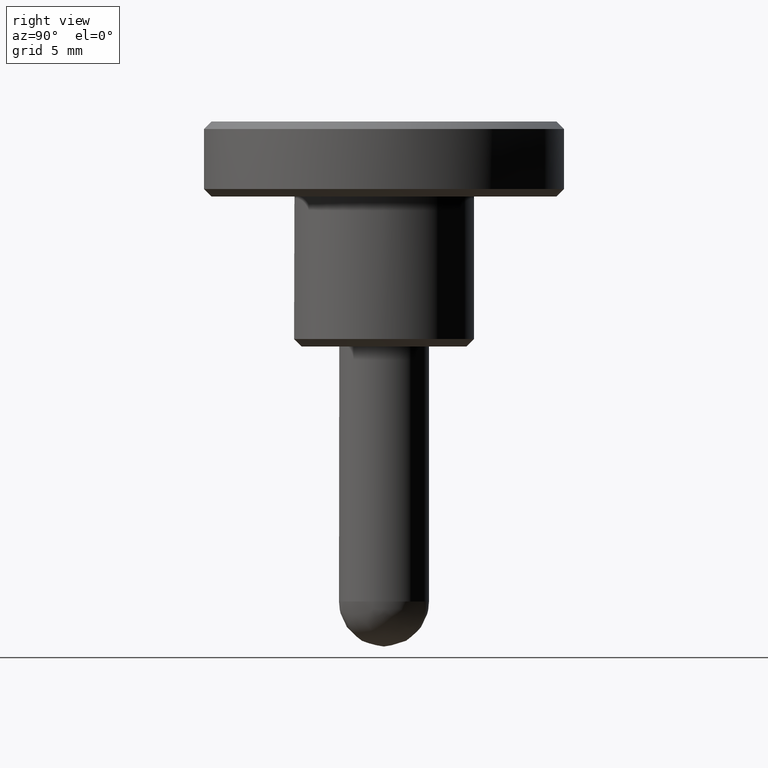
[diagram: clean part render]
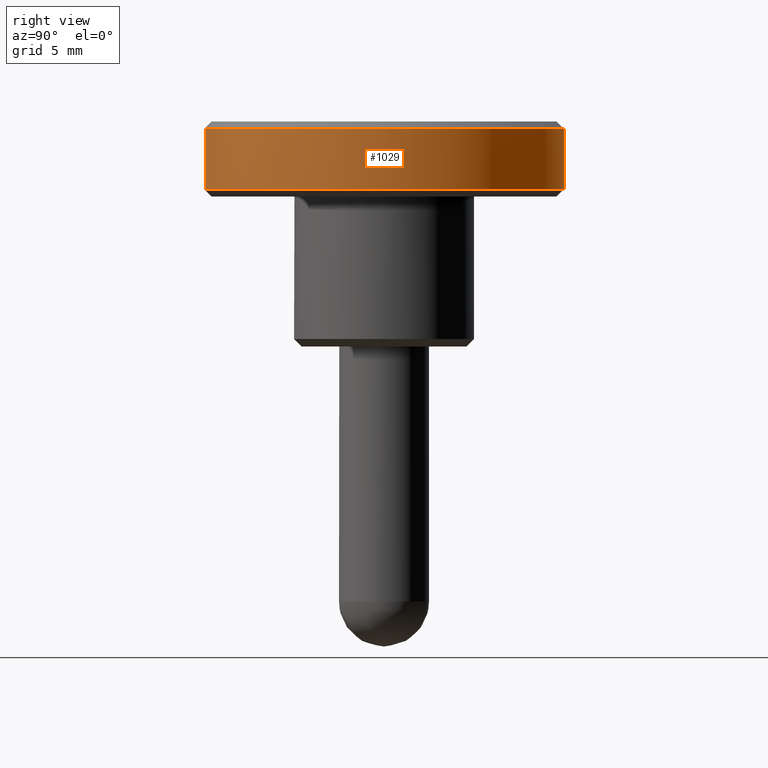
[diagram: same view with one face highlighted and labeled with its STEP entity id]
A machine part, right view. The second image highlights one B-rep face of the part: STEP entity #1029.
In plain terms, the highlighted face is a freeform B-spline surface patch.
Its self-contained STEP definition (entity closure, byte-faithful):
#150=CARTESIAN_POINT('',(1.489527415792063,-11.907195642867739,14.499999999999980));
#151=VERTEX_POINT('',#150);
#167=CARTESIAN_POINT('',(12.0,0.0,14.500000000000000));
#168=VERTEX_POINT('',#167);
#169=CARTESIAN_POINT('',(12.0,0.0,14.500000000000000));
#170=CARTESIAN_POINT('',(12.000000000000002,-10.592390920023666,14.500000000000005));
#171=CARTESIAN_POINT('',(1.489527415792063,-11.907195642867746,14.499999999999980));
#179=(BOUNDED_CURVE()B_SPLINE_CURVE(2,(#169,#170,#171),.UNSPECIFIED.,.F.,.U.)B_SPLINE_CURVE_WITH_KNOTS((3,3),(0.500000000000000,0.728526192964051),.UNSPECIFIED.)CURVE()GEOMETRIC_REPRESENTATION_ITEM()RATIONAL_B_SPLINE_CURVE((1.0,0.732264911038300,0.954005666903070))REPRESENTATION_ITEM(''));
#180=EDGE_CURVE('',#168,#151,#179,.T.);
#182=CARTESIAN_POINT('',(-0.104707313741634,11.999543173734800,14.499999999999980));
#183=VERTEX_POINT('',#182);
#184=CARTESIAN_POINT('',(-0.104707313741634,11.999543173734805,14.499999999999984));
#185=CARTESIAN_POINT('',(-0.052354653411694,11.999999999999996,14.500000000000002));
#186=CARTESIAN_POINT('',(0.0,12.0,14.500000000000000));
#187=CARTESIAN_POINT('',(12.0,12.0,14.500000000000000));
#188=CARTESIAN_POINT('',(12.0,0.0,14.500000000000000));
#196=(BOUNDED_CURVE()B_SPLINE_CURVE(2,(#184,#185,#186,#187,#188),.UNSPECIFIED.,.F.,.U.)B_SPLINE_CURVE_WITH_KNOTS((3,2,3),(0.248460268782973,0.250000000000000,0.500000000000000),.UNSPECIFIED.)CURVE()GEOMETRIC_REPRESENTATION_ITEM()RATIONAL_B_SPLINE_CURVE((0.996414405601316,0.998196092670950,1.0,0.707106781186548,1.0))REPRESENTATION_ITEM(''));
#197=EDGE_CURVE('',#183,#168,#196,.T.);
#361=CARTESIAN_POINT('',(-0.104707174263910,11.999543174951750,10.500000000000000));
#362=VERTEX_POINT('',#361);
#376=CARTESIAN_POINT('',(12.0,0.0,10.500000000000000));
#377=VERTEX_POINT('',#376);
#378=CARTESIAN_POINT('',(12.0,0.0,10.500000000000000));
#379=CARTESIAN_POINT('',(12.0,12.0,10.500000000000002));
#380=CARTESIAN_POINT('',(0.0,12.0,10.500000000000000));
#381=CARTESIAN_POINT('',(-0.052354583668849,12.000000000000005,10.499999999999996));
#382=CARTESIAN_POINT('',(-0.104707174263910,11.999543174951752,10.500000000000000));
#390=(BOUNDED_CURVE()B_SPLINE_CURVE(2,(#378,#379,#380,#381,#382),.UNSPECIFIED.,.F.,.U.)B_SPLINE_CURVE_WITH_KNOTS((3,2,3),(0.500000000000000,0.750000000000000,0.751539729169616),.UNSPECIFIED.)CURVE()GEOMETRIC_REPRESENTATION_ITEM()RATIONAL_B_SPLINE_CURVE((1.0,0.707106781186548,1.0,0.998196095069641,0.996414410339607))REPRESENTATION_ITEM(''));
#391=EDGE_CURVE('',#377,#362,#390,.T.);
#393=CARTESIAN_POINT('',(9.826393352525180,-6.887814869859507,10.500000000000400));
#394=VERTEX_POINT('',#393);
#395=CARTESIAN_POINT('',(9.826393352525180,-6.887814869859507,10.500000000000398));
#396=CARTESIAN_POINT('',(12.000000000000005,-3.786872943387931,10.500000000000000));
#397=CARTESIAN_POINT('',(12.0,0.0,10.500000000000000));
#405=(BOUNDED_CURVE()B_SPLINE_CURVE(2,(#395,#396,#397),.UNSPECIFIED.,.F.,.U.)B_SPLINE_CURVE_WITH_KNOTS((3,3),(0.401326273796902,0.500000000000000),.UNSPECIFIED.)CURVE()GEOMETRIC_REPRESENTATION_ITEM()RATIONAL_B_SPLINE_CURVE((0.860049271925760,0.884396538880229,1.0))REPRESENTATION_ITEM(''));
#406=EDGE_CURVE('',#394,#377,#405,.T.);
#444=CARTESIAN_POINT('',(1.489533232262267,-11.907194915259360,10.500000000000000));
#445=VERTEX_POINT('',#444);
#446=CARTESIAN_POINT('',(1.489533232262267,-11.907194915259359,10.500000000000002));
#447=CARTESIAN_POINT('',(6.771180838092149,-11.246486017322699,10.500000000000000));
#448=CARTESIAN_POINT('',(9.826393352525180,-6.887814869859507,10.500000000000398));
#456=(BOUNDED_CURVE()B_SPLINE_CURVE(2,(#446,#447,#448),.UNSPECIFIED.,.F.,.U.)B_SPLINE_CURVE_WITH_KNOTS((3,3),(0.271473889416736,0.401326273796901),.UNSPECIFIED.)CURVE()GEOMETRIC_REPRESENTATION_ITEM()RATIONAL_B_SPLINE_CURVE((0.954005507033687,0.828008821150943,0.860049271925760))REPRESENTATION_ITEM(''));
#457=EDGE_CURVE('',#445,#394,#456,.T.);
#994=CARTESIAN_POINT('',(1.489536024957952,-11.907194565906458,10.399999999999999));
#995=CARTESIAN_POINT('',(12.092793966029335,-10.580775097598652,10.399999999999999));
#996=CARTESIAN_POINT('',(11.999543076770051,0.104718425980487,10.400000000000000));
#997=CARTESIAN_POINT('',(11.894824650789566,12.104261502750537,10.399999999999999));
#998=CARTESIAN_POINT('',(-0.104718425980487,11.999543076770051,10.400000000000000));
#999=CARTESIAN_POINT('',(1.489536024957952,-11.907194565906458,14.602500000000010));
#1000=CARTESIAN_POINT('',(12.092793966029335,-10.580775097598652,14.602500000000004));
#1001=CARTESIAN_POINT('',(11.999543076770051,0.104718425980487,14.602499999999999));
#1002=CARTESIAN_POINT('',(11.894824650789566,12.104261502750537,14.602499999999997));
#1003=CARTESIAN_POINT('',(-0.104718425980487,11.999543076770051,14.602499999999999));
#1011=(BOUNDED_SURFACE()B_SPLINE_SURFACE(2,1,((#994,#999),(#995,#1000),(#996,#1001),(#997,#1002),(#998,#1003)),.UNSPECIFIED.,.F.,.F.,.U.)B_SPLINE_SURFACE_WITH_KNOTS((3,2,3),(2,2),(0.0,18.291670914395869,38.173921908304429),(0.0,4.202500000000006),.UNSPECIFIED.)GEOMETRIC_REPRESENTATION_ITEM()RATIONAL_B_SPLINE_SURFACE(((0.956886118190660,0.956886118190660),(0.730538238691624,0.730538238691624),(1.0,1.0),(0.707106781186548,0.707106781186548),(1.0,1.0)))REPRESENTATION_ITEM('')SURFACE());
#1012=ORIENTED_EDGE('',*,*,#180,.T.);
#1013=CARTESIAN_POINT('',(1.489533232262267,-11.907194915259360,10.500000000000000));
#1014=CARTESIAN_POINT('',(1.489527415792063,-11.907195642867739,14.499999999999980));
#1015=QUASI_UNIFORM_CURVE('',1,(#1013,#1014),.UNSPECIFIED.,.F.,.U.);
#1016=EDGE_CURVE('',#445,#151,#1015,.T.);
#1017=ORIENTED_EDGE('',*,*,#1016,.F.);
#1018=ORIENTED_EDGE('',*,*,#457,.T.);
#1019=ORIENTED_EDGE('',*,*,#406,.T.);
#1020=ORIENTED_EDGE('',*,*,#391,.T.);
#1021=CARTESIAN_POINT('',(-0.104707174263910,11.999543174951750,10.500000000000000));
#1022=CARTESIAN_POINT('',(-0.104707313741634,11.999543173734800,14.499999999999980));
#1023=QUASI_UNIFORM_CURVE('',1,(#1021,#1022),.UNSPECIFIED.,.F.,.U.);
#1024=EDGE_CURVE('',#362,#183,#1023,.T.);
#1025=ORIENTED_EDGE('',*,*,#1024,.T.);
#1026=ORIENTED_EDGE('',*,*,#197,.T.);
#1027=EDGE_LOOP('',(#1012,#1017,#1018,#1019,#1020,#1025,#1026));
#1028=FACE_OUTER_BOUND('',#1027,.T.);
#1029=ADVANCED_FACE('',(#1028),#1011,.T.);